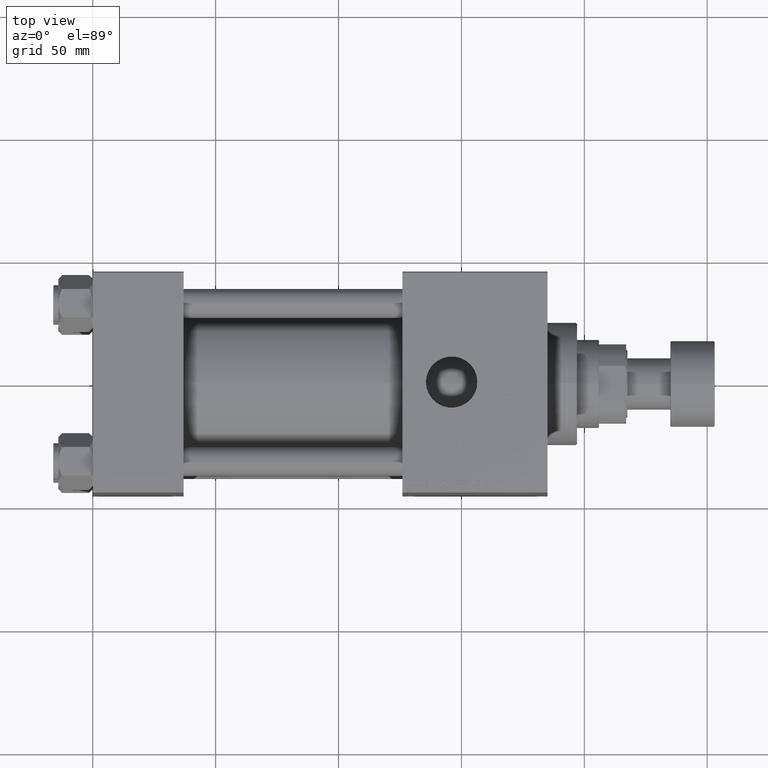
[diagram: clean part render]
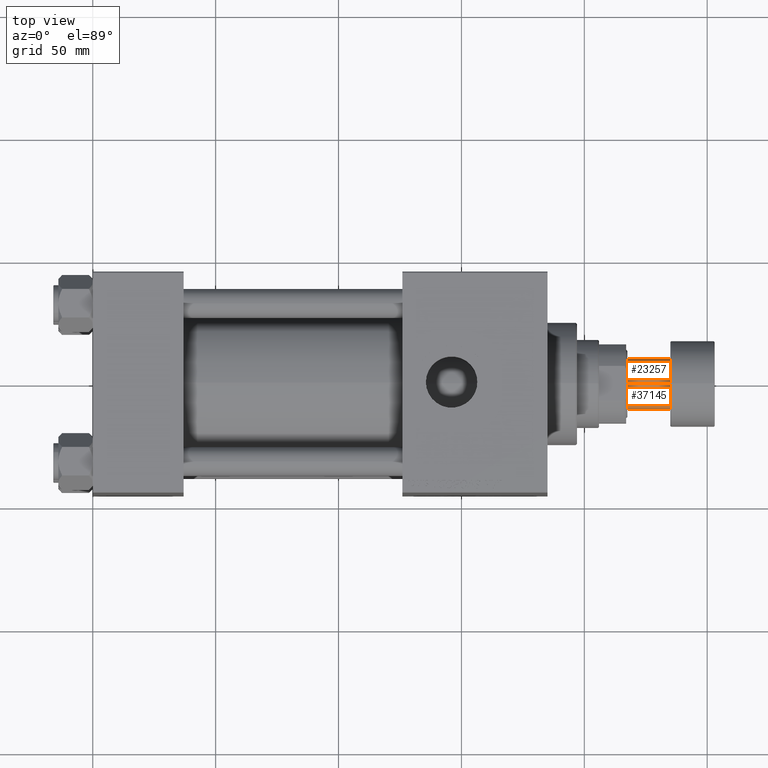
[diagram: same view with one multi-face feature highlighted, each face labeled with its STEP entity id]
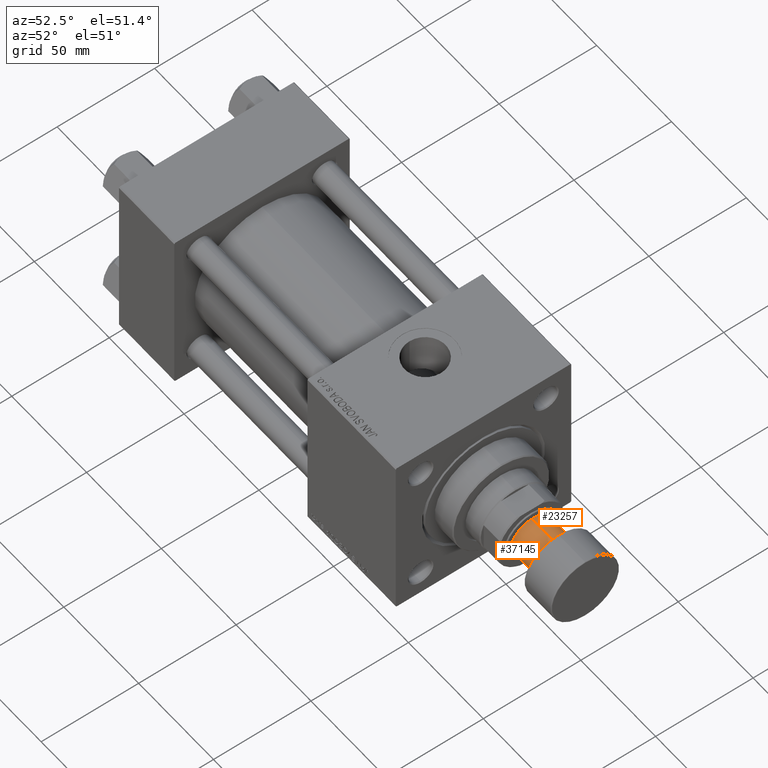
[diagram: same view with one multi-face feature highlighted, each face labeled with its STEP entity id]
A machine part, top view. The highlighted faces form ONE feature: a constant-radius fillet chain: 2 tangent blend faces with common blend radius 10.5 mm. The faces share edges in the B-rep.
A second angle (auxiliary view) of the same feature is appended — it is thin or edge-on in the first view.
Their STEP definitions:
[1] entity #37145 (Cylinder):
#85 = CARTESIAN_POINT ( 'NONE',  ( -10.50000000000000000, 1.285879139104720831E-15, -18.00000000000000000 ) ) ;
#339 = CARTESIAN_POINT ( 'NONE',  ( 10.50000000000000000, 0.000000000000000000, -35.50000000000000711 ) ) ;
#4442 = VERTEX_POINT ( 'NONE', #85 ) ;
#5257 = LINE ( 'NONE', #18051, #37178 ) ;
#6495 = DIRECTION ( 'NONE',  ( -0.000000000000000000, -0.000000000000000000, 1.000000000000000000 ) ) ;
#7465 = FACE_OUTER_BOUND ( 'NONE', #18815, .T. ) ;
#8863 = ORIENTED_EDGE ( 'NONE', *, *, #12055, .F. ) ;
#10246 = AXIS2_PLACEMENT_3D ( 'NONE', #45291, #37636, #26086 ) ;
#11181 = VECTOR ( 'NONE', #6495, 1000.000000000000000 ) ;
#11661 = CARTESIAN_POINT ( 'NONE',  ( -10.50000000000000000, 1.285879139104720831E-15, -35.50000000000000711 ) ) ;
#12055 = EDGE_CURVE ( 'NONE', #26497, #4442, #5257, .T. ) ;
#12068 = DIRECTION ( 'NONE',  ( 1.000000000000000000, 0.000000000000000000, 0.000000000000000000 ) ) ;
#12704 = CIRCLE ( 'NONE', #10246, 10.50000000000000000 ) ;
#14434 = LINE ( 'NONE', #40852, #11181 ) ;
#15818 = VERTEX_POINT ( 'NONE', #27122 ) ;
#18051 = CARTESIAN_POINT ( 'NONE',  ( -10.50000000000000000, 1.285879139104720831E-15, -35.50000000000000711 ) ) ;
#18363 = EDGE_CURVE ( 'NONE', #15818, #4442, #12704, .T. ) ;
#18765 = AXIS2_PLACEMENT_3D ( 'NONE', #30981, #27151, #26899 ) ;
#18815 = EDGE_LOOP ( 'NONE', ( #8863, #35780, #45369, #44523 ) ) ;
#26086 = DIRECTION ( 'NONE',  ( -1.000000000000000000, 0.000000000000000000, 0.000000000000000000 ) ) ;
#26497 = VERTEX_POINT ( 'NONE', #11661 ) ;
#26899 = DIRECTION ( 'NONE',  ( -1.000000000000000000, 0.000000000000000000, 0.000000000000000000 ) ) ;
#26936 = DIRECTION ( 'NONE',  ( -0.000000000000000000, -0.000000000000000000, 1.000000000000000000 ) ) ;
#27122 = CARTESIAN_POINT ( 'NONE',  ( 10.50000000000000000, 0.000000000000000000, -18.00000000000000000 ) ) ;
#27151 = DIRECTION ( 'NONE',  ( 0.000000000000000000, 0.000000000000000000, -1.000000000000000000 ) ) ;
#27220 = EDGE_CURVE ( 'NONE', #44861, #26497, #37577, .T. ) ;
#30758 = CYLINDRICAL_SURFACE ( 'NONE', #36125, 10.50000000000000000 ) ;
#30981 = CARTESIAN_POINT ( 'NONE',  ( 0.000000000000000000, 0.000000000000000000, -35.50000000000000711 ) ) ;
#33676 = DIRECTION ( 'NONE',  ( -0.000000000000000000, -0.000000000000000000, 1.000000000000000000 ) ) ;
#35780 = ORIENTED_EDGE ( 'NONE', *, *, #27220, .F. ) ;
#36125 = AXIS2_PLACEMENT_3D ( 'NONE', #46142, #26936, #12068 ) ;
#37145 = ADVANCED_FACE ( 'NONE', ( #7465 ), #30758, .T. ) ;
#37178 = VECTOR ( 'NONE', #33676, 1000.000000000000000 ) ;
#37577 = CIRCLE ( 'NONE', #18765, 10.50000000000000000 ) ;
#37636 = DIRECTION ( 'NONE',  ( 0.000000000000000000, 0.000000000000000000, -1.000000000000000000 ) ) ;
#40852 = CARTESIAN_POINT ( 'NONE',  ( 10.50000000000000000, 0.000000000000000000, -35.50000000000000711 ) ) ;
#44523 = ORIENTED_EDGE ( 'NONE', *, *, #18363, .T. ) ;
#44861 = VERTEX_POINT ( 'NONE', #339 ) ;
#45291 = CARTESIAN_POINT ( 'NONE',  ( 0.000000000000000000, 0.000000000000000000, -18.00000000000000000 ) ) ;
#45369 = ORIENTED_EDGE ( 'NONE', *, *, #45957, .T. ) ;
#45957 = EDGE_CURVE ( 'NONE', #44861, #15818, #14434, .T. ) ;
#46142 = CARTESIAN_POINT ( 'NONE',  ( 0.000000000000000000, 0.000000000000000000, -35.50000000000000711 ) ) ;
[2] entity #23257 (Cylinder):
#63 = EDGE_CURVE ( 'NONE', #4442, #15818, #4018, .T. ) ;
#85 = CARTESIAN_POINT ( 'NONE',  ( -10.50000000000000000, 1.285879139104720831E-15, -18.00000000000000000 ) ) ;
#339 = CARTESIAN_POINT ( 'NONE',  ( 10.50000000000000000, 0.000000000000000000, -35.50000000000000711 ) ) ;
#4018 = CIRCLE ( 'NONE', #32660, 10.50000000000000000 ) ;
#4442 = VERTEX_POINT ( 'NONE', #85 ) ;
#5257 = LINE ( 'NONE', #18051, #37178 ) ;
#6495 = DIRECTION ( 'NONE',  ( -0.000000000000000000, -0.000000000000000000, 1.000000000000000000 ) ) ;
#11181 = VECTOR ( 'NONE', #6495, 1000.000000000000000 ) ;
#11200 = EDGE_CURVE ( 'NONE', #26497, #44861, #34728, .T. ) ;
#11661 = CARTESIAN_POINT ( 'NONE',  ( -10.50000000000000000, 1.285879139104720831E-15, -35.50000000000000711 ) ) ;
#11947 = ORIENTED_EDGE ( 'NONE', *, *, #11200, .F. ) ;
#12055 = EDGE_CURVE ( 'NONE', #26497, #4442, #5257, .T. ) ;
#14434 = LINE ( 'NONE', #40852, #11181 ) ;
#15818 = VERTEX_POINT ( 'NONE', #27122 ) ;
#18051 = CARTESIAN_POINT ( 'NONE',  ( -10.50000000000000000, 1.285879139104720831E-15, -35.50000000000000711 ) ) ;
#18418 = DIRECTION ( 'NONE',  ( 0.000000000000000000, 0.000000000000000000, -1.000000000000000000 ) ) ;
#21742 = CARTESIAN_POINT ( 'NONE',  ( 0.000000000000000000, 0.000000000000000000, -35.50000000000000711 ) ) ;
#22997 = ORIENTED_EDGE ( 'NONE', *, *, #12055, .T. ) ;
#23257 = ADVANCED_FACE ( 'NONE', ( #36565 ), #48338, .T. ) ;
#26497 = VERTEX_POINT ( 'NONE', #11661 ) ;
#27072 = ORIENTED_EDGE ( 'NONE', *, *, #63, .T. ) ;
#27122 = CARTESIAN_POINT ( 'NONE',  ( 10.50000000000000000, 0.000000000000000000, -18.00000000000000000 ) ) ;
#28098 = DIRECTION ( 'NONE',  ( 1.000000000000000000, 0.000000000000000000, 0.000000000000000000 ) ) ;
#28353 = DIRECTION ( 'NONE',  ( -0.000000000000000000, -0.000000000000000000, 1.000000000000000000 ) ) ;
#29095 = CARTESIAN_POINT ( 'NONE',  ( 0.000000000000000000, 0.000000000000000000, -18.00000000000000000 ) ) ;
#29347 = DIRECTION ( 'NONE',  ( -1.000000000000000000, 0.000000000000000000, 0.000000000000000000 ) ) ;
#29594 = DIRECTION ( 'NONE',  ( 0.000000000000000000, 0.000000000000000000, -1.000000000000000000 ) ) ;
#30052 = AXIS2_PLACEMENT_3D ( 'NONE', #32447, #28353, #28098 ) ;
#32447 = CARTESIAN_POINT ( 'NONE',  ( 0.000000000000000000, 0.000000000000000000, -35.50000000000000711 ) ) ;
#32660 = AXIS2_PLACEMENT_3D ( 'NONE', #29095, #29594, #29347 ) ;
#33676 = DIRECTION ( 'NONE',  ( -0.000000000000000000, -0.000000000000000000, 1.000000000000000000 ) ) ;
#34728 = CIRCLE ( 'NONE', #41488, 10.50000000000000000 ) ;
#34931 = ORIENTED_EDGE ( 'NONE', *, *, #45957, .F. ) ;
#36565 = FACE_OUTER_BOUND ( 'NONE', #36724, .T. ) ;
#36724 = EDGE_LOOP ( 'NONE', ( #11947, #22997, #27072, #34931 ) ) ;
#37178 = VECTOR ( 'NONE', #33676, 1000.000000000000000 ) ;
#40852 = CARTESIAN_POINT ( 'NONE',  ( 10.50000000000000000, 0.000000000000000000, -35.50000000000000711 ) ) ;
#41488 = AXIS2_PLACEMENT_3D ( 'NONE', #21742, #18418, #45568 ) ;
#44861 = VERTEX_POINT ( 'NONE', #339 ) ;
#45568 = DIRECTION ( 'NONE',  ( -1.000000000000000000, 0.000000000000000000, 0.000000000000000000 ) ) ;
#45957 = EDGE_CURVE ( 'NONE', #44861, #15818, #14434, .T. ) ;
#48338 = CYLINDRICAL_SURFACE ( 'NONE', #30052, 10.50000000000000000 ) ;